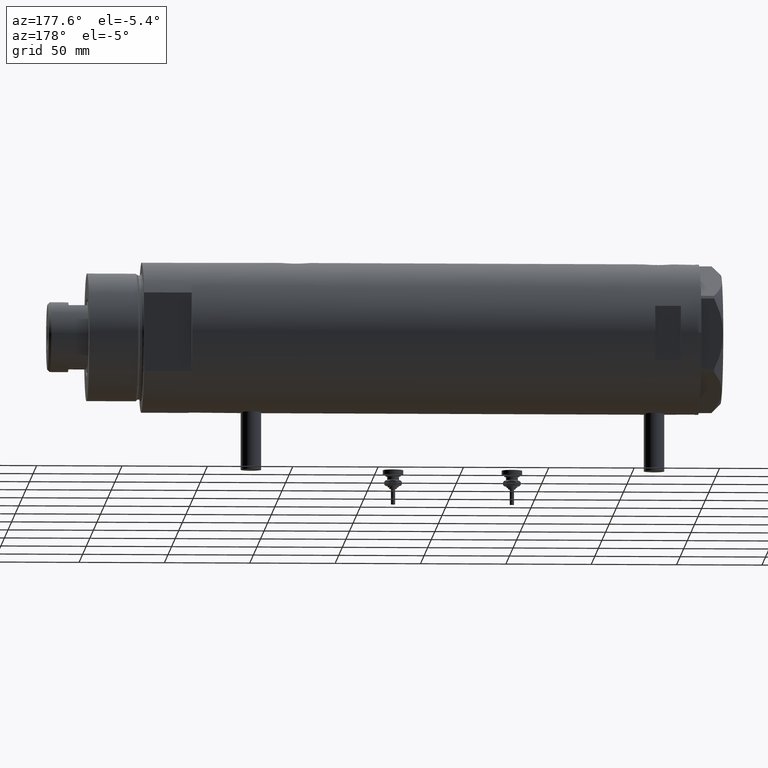
[diagram: clean part render]
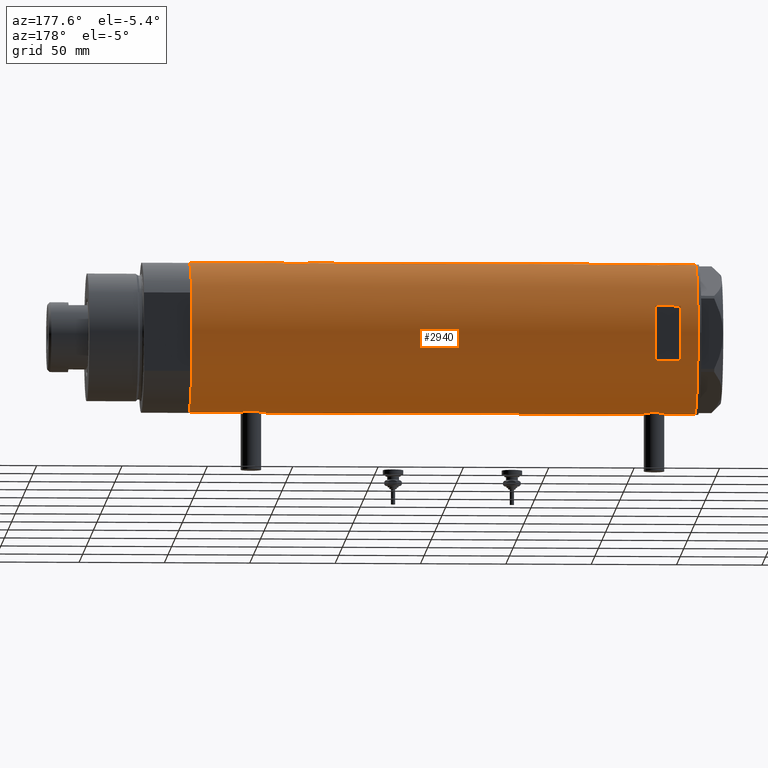
[diagram: same view with one face highlighted and labeled with its STEP entity id]
A machine part, auxiliary view. The second image highlights one B-rep face of the part: STEP entity #2940.
In plain terms, the highlighted cylindrical surface (partial cylindrical patch) has radius 44 mm, axis along (-1, -0, 0).
Its self-contained STEP definition (entity closure, byte-faithful):
#10 = CARTESIAN_POINT ( 'NONE',  ( 43.94229162222109863, 2.275476993733910991, -95.84314464222305219 ) ) ;
#13 = CARTESIAN_POINT ( 'NONE',  ( 43.17306590853067405, 8.492365194390501415, 131.1901253269345773 ) ) ;
#21 = VERTEX_POINT ( 'NONE', #4566 ) ;
#44 = CARTESIAN_POINT ( 'NONE',  ( 43.99635668041006653, 0.6544833911834624374, 135.8840070847753623 ) ) ;
#66 = CARTESIAN_POINT ( 'NONE',  ( -43.62981559643959883, 5.696090409300652802, -114.4805136541452271 ) ) ;
#75 = CARTESIAN_POINT ( 'NONE',  ( -43.83576802966639008, 3.813209221108460500, 119.2313450964529125 ) ) ;
#95 = FACE_BOUND ( 'NONE', #1025, .T. ) ;
#102 = CARTESIAN_POINT ( 'NONE',  ( -43.92459115390705904, 2.581892149020998506, 118.5045417292665491 ) ) ;
#109 = ORIENTED_EDGE ( 'NONE', *, *, #5431, .T. ) ;
#133 = CARTESIAN_POINT ( 'NONE',  ( -43.55973179376101001, 6.209370339246233605, 123.3793823294013379 ) ) ;
#174 = EDGE_CURVE ( 'NONE', #3316, #5863, #4239, .T. ) ;
#191 = CARTESIAN_POINT ( 'NONE',  ( 43.85884410404901956, 3.534688330930385369, -95.46019808750335756 ) ) ;
#196 = CARTESIAN_POINT ( 'NONE',  ( -43.67867890111968165, 5.309046579850784653, 120.8957722092397660 ) ) ;
#211 = DIRECTION ( 'NONE',  ( 0.000000000000000000, 0.000000000000000000, 1.000000000000000000 ) ) ;
#214 = EDGE_CURVE ( 'NONE', #4997, #4522, #5114, .T. ) ;
#219 = CARTESIAN_POINT ( 'NONE',  ( 43.13897484505559987, 8.663345277311670145, -91.10529600060513644 ) ) ;
#253 = DIRECTION ( 'NONE',  ( 0.000000000000000000, 0.000000000000000000, 1.000000000000000000 ) ) ;
#262 = CARTESIAN_POINT ( 'NONE',  ( 43.07598348983508174, 8.971306953823004804, 121.4703057681281138 ) ) ;
#272 = CARTESIAN_POINT ( 'NONE',  ( -44.00000000000000000, 5.388445916248353619E-15, -148.1999999999999886 ) ) ;
#273 = VECTOR ( 'NONE', #211, 1000.000000000000000 ) ;
#284 = CARTESIAN_POINT ( 'NONE',  ( 43.27871541412905287, 7.937063204555986573, -80.00825002753971660 ) ) ;
#323 = CARTESIAN_POINT ( 'NONE',  ( 42.92624534982631701, 9.661626915142806027, 123.2999199585529482 ) ) ;
#339 = CARTESIAN_POINT ( 'NONE',  ( 43.35257020184193522, 7.523219862841656003, -79.50397445915866967 ) ) ;
#343 = CARTESIAN_POINT ( 'NONE',  ( -44.00000000000000000, 4.742435893011557518E-16, -105.6499999999999915 ) ) ;
#352 = CARTESIAN_POINT ( 'NONE',  ( 42.90786968859020334, 9.742642423712167599, 123.6219770345287543 ) ) ;
#382 = CARTESIAN_POINT ( 'NONE',  ( -43.95446647384545003, 2.010857111636596084, 130.1212422636393455 ) ) ;
#437 = CARTESIAN_POINT ( 'NONE',  ( -43.57657963456318839, 6.089610171536609329, 125.6217853958080894 ) ) ;
#457 = VERTEX_POINT ( 'NONE', #3061 ) ;
#462 = EDGE_CURVE ( 'NONE', #2412, #4887, #4176, .T. ) ;
#465 = CARTESIAN_POINT ( 'NONE',  ( 43.77712723341632994, 4.432620652875505662, 134.8699500975996557 ) ) ;
#487 = CARTESIAN_POINT ( 'NONE',  ( -43.55386785759471024, 6.249847571481740971, -111.4894505238204374 ) ) ;
#491 = EDGE_CURVE ( 'NONE', #4489, #4522, #757, .T. ) ;
#506 = ORIENTED_EDGE ( 'NONE', *, *, #3540, .F. ) ;
#508 = VECTOR ( 'NONE', #2962, 1000.000000000000000 ) ;
#511 = VECTOR ( 'NONE', #4270, 1000.000000000000000 ) ;
#516 = CARTESIAN_POINT ( 'NONE',  ( -43.66555354895124452, 5.415612800338318600, -108.7734364282244712 ) ) ;
#546 = CARTESIAN_POINT ( 'NONE',  ( -43.74833112883977293, 4.708208586952001617, -107.7694961649112457 ) ) ;
#640 = CARTESIAN_POINT ( 'NONE',  ( 43.77939001959703802, 4.442287752090381403, -95.08306177559161654 ) ) ;
#645 = CARTESIAN_POINT ( 'NONE',  ( -43.71901936021024682, 4.969830049220625767, 120.3883236230112743 ) ) ;
#661 = CARTESIAN_POINT ( 'NONE',  ( 0.000000000000000000, 0.000000000000000000, 123.1999999999999744 ) ) ;
#668 = DIRECTION ( 'NONE',  ( -0.000000000000000000, -0.000000000000000000, -1.000000000000000000 ) ) ;
#685 = CARTESIAN_POINT ( 'NONE',  ( 43.94229162222109863, 2.275476993733910547, 116.1568553577769620 ) ) ;
#703 = CARTESIAN_POINT ( 'NONE',  ( 42.92624534982630280, 9.661626915142804251, -88.70008004144708025 ) ) ;
#711 = CARTESIAN_POINT ( 'NONE',  ( -44.00000000000000000, 5.388445781982983516E-15, 117.9500000000000028 ) ) ;
#757 = LINE ( 'NONE', #272, #508 ) ;
#771 = CARTESIAN_POINT ( 'NONE',  ( 43.97062489912107708, 1.639461988184795826, -76.22985373334013559 ) ) ;
#775 = CARTESIAN_POINT ( 'NONE',  ( -44.00000000000000711, 0.4135148353567996149, -105.6499999999999773 ) ) ;
#781 = CARTESIAN_POINT ( 'NONE',  ( -44.00000000000000000, 5.388445916248353619E-15, 148.1999999999999886 ) ) ;
#784 = CARTESIAN_POINT ( 'NONE',  ( 42.99303682946561622, 9.360292926890506848, 122.3657577979279836 ) ) ;
#798 = CARTESIAN_POINT ( 'NONE',  ( -44.00000000000000000, 3.205170455528113082E-15, 130.4500000000000171 ) ) ;
#800 = EDGE_CURVE ( 'NONE', #3464, #457, #1961, .T. ) ;
#826 = CARTESIAN_POINT ( 'NONE',  ( 43.17306590853065984, 8.492365194390513849, -80.80987467306545113 ) ) ;
#840 = CARTESIAN_POINT ( 'NONE',  ( 43.57805684119163914, 6.103282219787171670, 133.8481620164786534 ) ) ;
#899 = CARTESIAN_POINT ( 'NONE',  ( -43.99999999999997158, 0.4081702738789203533, -118.1499999999999631 ) ) ;
#901 = CARTESIAN_POINT ( 'NONE',  ( 43.35257020184193522, 7.523219862841646233, 132.4960255408413730 ) ) ;
#926 = CARTESIAN_POINT ( 'NONE',  ( -43.66575107734168171, 5.414026674167576658, -115.0293508803769811 ) ) ;
#930 = CARTESIAN_POINT ( 'NONE',  ( -43.97068415157984589, 1.617901284326944689, 130.2404512830004251 ) ) ;
#955 = CARTESIAN_POINT ( 'NONE',  ( 15.96871942267132027, 40.99999999999999289, 123.1999999999999886 ) ) ;
#986 = CARTESIAN_POINT ( 'NONE',  ( -44.00000000000000000, 5.388445781982983516E-15, -118.1500000000000057 ) ) ;
#1025 = EDGE_LOOP ( 'NONE', ( #5167, #1451, #506, #5436 ) ) ;
#1072 = ORIENTED_EDGE ( 'NONE', *, *, #5400, .T. ) ;
#1107 = CARTESIAN_POINT ( 'NONE',  ( -43.64133398152736021, 5.607447751852150830, 121.4321395498756573 ) ) ;
#1135 = CARTESIAN_POINT ( 'NONE',  ( 43.46520118248735542, 6.843279251446915623, -93.39898327212165441 ) ) ;
#1137 = DIRECTION ( 'NONE',  ( 0.000000000000000000, 0.000000000000000000, 1.000000000000000000 ) ) ;
#1147 = CARTESIAN_POINT ( 'NONE',  ( -43.74805001749254529, 4.711035428619386956, -116.0277606412579985 ) ) ;
#1188 = CARTESIAN_POINT ( 'NONE',  ( 0.000000000000000000, 0.000000000000000000, 138.1999999999999886 ) ) ;
#1191 = CARTESIAN_POINT ( 'NONE',  ( 42.84863276153905076, 9.999733523508359312, -86.75869904750777550 ) ) ;
#1195 = DIRECTION ( 'NONE',  ( 0.000000000000000000, 0.000000000000000000, 1.000000000000000000 ) ) ;
#1262 = CARTESIAN_POINT ( 'NONE',  ( -43.91413175532567692, 2.773555030353453965, -106.2841576163325925 ) ) ;
#1284 = CARTESIAN_POINT ( 'NONE',  ( 44.00000000000002132, 0.3269372501759363336, -76.10000000000002274 ) ) ;
#1294 = CARTESIAN_POINT ( 'NONE',  ( 44.00000000000001421, 0.6630566900259826646, 115.9000000000000483 ) ) ;
#1319 = CARTESIAN_POINT ( 'NONE',  ( -43.67863969133946966, 5.309394106110044476, 127.5037929650255109 ) ) ;
#1367 = CARTESIAN_POINT ( 'NONE',  ( -43.61859254253774054, 5.782454868881351295, -109.5021359910553542 ) ) ;
#1370 = CARTESIAN_POINT ( 'NONE',  ( 43.98503110884232115, 1.314607393679875669, -96.03470984345551642 ) ) ;
#1395 = CARTESIAN_POINT ( 'NONE',  ( -43.67863969133946966, 5.309394106110037370, -108.5962070349745403 ) ) ;
#1451 = ORIENTED_EDGE ( 'NONE', *, *, #3939, .F. ) ;
#1463 = CARTESIAN_POINT ( 'NONE',  ( -43.91315028150558675, 2.769134003554747370, 118.5931738062459573 ) ) ;
#1476 = CARTESIAN_POINT ( 'NONE',  ( 15.96871942267132027, 40.99999999999999289, -148.1999999999999886 ) ) ;
#1486 = CARTESIAN_POINT ( 'NONE',  ( -43.59995593514495482, 5.920088975424566691, -109.8858209130821848 ) ) ;
#1498 = CARTESIAN_POINT ( 'NONE',  ( 44.00000000000000000, -3.917205576288906830E-21, 135.9000000000000341 ) ) ;
#1529 = VECTOR ( 'NONE', #4628, 1000.000000000000000 ) ;
#1571 = AXIS2_PLACEMENT_3D ( 'NONE', #661, #1662, #4410 ) ;
#1598 = ORIENTED_EDGE ( 'NONE', *, *, #174, .F. ) ;
#1610 = CARTESIAN_POINT ( 'NONE',  ( 43.39051256276903246, 7.301963662770312169, -79.25975531787059936 ) ) ;
#1624 = CARTESIAN_POINT ( 'NONE',  ( 42.96547725528407824, 9.488625330801086832, 129.1245034721107743 ) ) ;
#1645 = ORIENTED_EDGE ( 'NONE', *, *, #3233, .F. ) ;
#1662 = DIRECTION ( 'NONE',  ( -0.000000000000000000, -0.000000000000000000, 1.000000000000000000 ) ) ;
#1686 = CARTESIAN_POINT ( 'NONE',  ( -44.00000000000000000, 5.388445781982983516E-15, -118.1500000000000057 ) ) ;
#1708 = CARTESIAN_POINT ( 'NONE',  ( 43.24261242176995523, 8.130827601038827623, -80.26944813145831858 ) ) ;
#1717 = CARTESIAN_POINT ( 'NONE',  ( 43.57657781376909156, 6.094873943596689436, 117.9652569888040858 ) ) ;
#1734 = CARTESIAN_POINT ( 'NONE',  ( 44.00000000000000000, -3.917104602093038540E-21, -76.10000000000000853 ) ) ;
#1738 = CARTESIAN_POINT ( 'NONE',  ( 43.71454618729809027, 5.012329428678959253, -77.44063025941690626 ) ) ;
#1748 = CARTESIAN_POINT ( 'NONE',  ( 43.17277162440354488, 8.493905080221260562, 120.6121296489150723 ) ) ;
#1756 = DIRECTION ( 'NONE',  ( 0.000000000000000000, 0.000000000000000000, 1.000000000000000000 ) ) ;
#1771 = CARTESIAN_POINT ( 'NONE',  ( -43.74833112883975872, 4.708208586952010499, 128.3305038350887060 ) ) ;
#1805 = CARTESIAN_POINT ( 'NONE',  ( 43.24261242176996234, 8.130827601038818742, 131.7305518685417383 ) ) ;
#1826 = CARTESIAN_POINT ( 'NONE',  ( -43.94507179847653333, 2.206027755801677870, -106.0486847771820322 ) ) ;
#1830 = CARTESIAN_POINT ( 'NONE',  ( -43.87596296923810968, 3.305851531861728976, -117.2080358587625994 ) ) ;
#1858 = CARTESIAN_POINT ( 'NONE',  ( 44.00000000000000000, -3.917205576288906830E-21, 135.9000000000000341 ) ) ;
#1889 = CARTESIAN_POINT ( 'NONE',  ( -44.00000000000001421, 0.4135148353567998369, 130.4500000000000171 ) ) ;
#1922 = CARTESIAN_POINT ( 'NONE',  ( 43.27822890220284791, 7.945655169171514487, -92.20725383289293120 ) ) ;
#1928 = CARTESIAN_POINT ( 'NONE',  ( -43.87596296923809547, 3.305851531861729420, 118.8919641412373522 ) ) ;
#1956 = CARTESIAN_POINT ( 'NONE',  ( 43.92466059386730137, 2.593004216484783964, -95.76356669671355348 ) ) ;
#1960 = CARTESIAN_POINT ( 'NONE',  ( -43.99413512814552973, 0.8228129877960675964, 117.9909168567418050 ) ) ;
#1961 = LINE ( 'NONE', #3859, #511 ) ;
#1988 = CARTESIAN_POINT ( 'NONE',  ( -43.62981559643957752, 5.696090409300651025, 121.6194863458547673 ) ) ;
#2015 = CARTESIAN_POINT ( 'NONE',  ( -43.59867737633044982, 5.931302618788632408, 122.1875050497011301 ) ) ;
#2019 = VECTOR ( 'NONE', #1756, 1000.000000000000000 ) ;
#2038 = DIRECTION ( 'NONE',  ( 1.000000000000000000, -8.881784197001252323E-16, 0.000000000000000000 ) ) ;
#2044 = CARTESIAN_POINT ( 'NONE',  ( 43.71659050864931828, 5.015880325000607876, -94.77566825963822339 ) ) ;
#2078 = CARTESIAN_POINT ( 'NONE',  ( 42.86370458161098185, 9.935807968041567406, 124.5909544957013253 ) ) ;
#2088 = AXIS2_PLACEMENT_3D ( 'NONE', #5549, #4170, #3788 ) ;
#2101 = CARTESIAN_POINT ( 'NONE',  ( 0.000000000000000000, 0.000000000000000000, 148.1999999999999886 ) ) ;
#2134 = CARTESIAN_POINT ( 'NONE',  ( 43.98169492814104586, 1.310824514239765426, -76.18080219619319848 ) ) ;
#2161 = CARTESIAN_POINT ( 'NONE',  ( 42.84850876528984287, 10.00026482975807873, -85.44941694529576637 ) ) ;
#2164 = CARTESIAN_POINT ( 'NONE',  ( -15.96871942267132027, 40.99999999999999289, 123.1999999999999886 ) ) ;
#2267 = CARTESIAN_POINT ( 'NONE',  ( 43.71454618729809738, 5.012329428678965471, 134.5593697405831222 ) ) ;
#2293 = CARTESIAN_POINT ( 'NONE',  ( -43.55963022497230952, 6.210088036293396563, 125.0164616301742484 ) ) ;
#2315 = FACE_OUTER_BOUND ( 'NONE', #5351, .T. ) ;
#2337 = CARTESIAN_POINT ( 'NONE',  ( -43.55382423478827292, 6.250151562062086441, -112.3058952948734088 ) ) ;
#2343 = CARTESIAN_POINT ( 'NONE',  ( 43.50382207688847558, 6.605942769308297713, 133.4360468883822932 ) ) ;
#2365 = CARTESIAN_POINT ( 'NONE',  ( -43.58221825186232223, 6.049526113783018744, -113.5226297081795650 ) ) ;
#2372 = CARTESIAN_POINT ( 'NONE',  ( -43.66575107734167460, 5.414026674167574882, 121.0706491196229848 ) ) ;
#2377 = VERTEX_POINT ( 'NONE', #3301 ) ;
#2396 = VERTEX_POINT ( 'NONE', #3760 ) ;
#2412 = VERTEX_POINT ( 'NONE', #955 ) ;
#2528 = CARTESIAN_POINT ( 'NONE',  ( 42.86396777580259965, 9.934664719553397916, 127.2157619902652357 ) ) ;
#2531 = VERTEX_POINT ( 'NONE', #1734 ) ;
#2551 = CARTESIAN_POINT ( 'NONE',  ( 0.000000000000000000, 0.000000000000000000, -148.1999999999999886 ) ) ;
#2586 = CARTESIAN_POINT ( 'NONE',  ( 43.92756755766650656, 2.604528169608118393, -76.42286588097658750 ) ) ;
#2599 = CARTESIAN_POINT ( 'NONE',  ( 43.71659050864932539, 5.015880325000607876, 117.2243317403618477 ) ) ;
#2676 = VECTOR ( 'NONE', #3469, 1000.000000000000000 ) ;
#2688 = ORIENTED_EDGE ( 'NONE', *, *, #3309, .T. ) ;
#2716 = CARTESIAN_POINT ( 'NONE',  ( -43.91413175532566981, 2.773555030353461515, 129.8158423836674729 ) ) ;
#2770 = CARTESIAN_POINT ( 'NONE',  ( -43.95549163632549750, 2.014511215452027937, -117.8305895570497768 ) ) ;
#2773 = CARTESIAN_POINT ( 'NONE',  ( 43.39051256276903956, 7.301963662770305064, 132.7402446821294575 ) ) ;
#2826 = EDGE_CURVE ( 'NONE', #5863, #2396, #5674, .T. ) ;
#2867 = CARTESIAN_POINT ( 'NONE',  ( -44.00000000000000711, 0.4081702738789175222, 117.9500000000000313 ) ) ;
#2891 = CARTESIAN_POINT ( 'NONE',  ( -43.57657963456318839, 6.089610171536606664, -110.4782146041918622 ) ) ;
#2940 = ADVANCED_FACE ( 'NONE', ( #95, #2315 ), #3692, .T. ) ;
#2962 = DIRECTION ( 'NONE',  ( 0.000000000000000000, 0.000000000000000000, 1.000000000000000000 ) ) ;
#3018 = CARTESIAN_POINT ( 'NONE',  ( 43.85884410404901246, 3.534688330930383593, 116.5398019124966424 ) ) ;
#3037 = CARTESIAN_POINT ( 'NONE',  ( 42.86396777580259254, 9.934664719553399692, -84.78423800973480695 ) ) ;
#3061 = CARTESIAN_POINT ( 'NONE',  ( 44.00000000000000000, -2.552687571866728611E-15, -96.10000000000000853 ) ) ;
#3142 = CARTESIAN_POINT ( 'NONE',  ( 43.27822890220284791, 7.945655169171514487, 119.7927461671070830 ) ) ;
#3158 = AXIS2_PLACEMENT_3D ( 'NONE', #2551, #1195, #3607 ) ;
#3165 = CARTESIAN_POINT ( 'NONE',  ( -43.80687348212602217, 4.128385987736833407, -116.6104874331096255 ) ) ;
#3170 = CARTESIAN_POINT ( 'NONE',  ( -43.66555354895123742, 5.415612800338316823, 127.3265635717755515 ) ) ;
#3195 = CARTESIAN_POINT ( 'NONE',  ( -43.59995593514495482, 5.920088975424567579, 126.2141790869178379 ) ) ;
#3222 = CARTESIAN_POINT ( 'NONE',  ( -43.99417607942194763, 0.8200150578638757404, 130.4093667251674162 ) ) ;
#3233 = EDGE_CURVE ( 'NONE', #2396, #4561, #5480, .T. ) ;
#3242 = CARTESIAN_POINT ( 'NONE',  ( -43.64122538274737195, 5.608286354294323317, -109.1338861303666192 ) ) ;
#3249 = CARTESIAN_POINT ( 'NONE',  ( -43.83576802966640429, 3.813209221108459168, -116.8686549035471103 ) ) ;
#3261 = ORIENTED_EDGE ( 'NONE', *, *, #4906, .F. ) ;
#3286 = ORIENTED_EDGE ( 'NONE', *, *, #2826, .F. ) ;
#3301 = CARTESIAN_POINT ( 'NONE',  ( 15.96871942267132027, 40.99999999999999289, 138.1999999999999886 ) ) ;
#3303 = CARTESIAN_POINT ( 'NONE',  ( 43.35294442506072699, 7.532526048221049209, -92.70935414491108872 ) ) ;
#3307 = CARTESIAN_POINT ( 'NONE',  ( -43.95549163632550460, 2.014511215452026160, 118.2694104429502460 ) ) ;
#3309 = EDGE_CURVE ( 'NONE', #3464, #3959, #4984, .T. ) ;
#3316 = VERTEX_POINT ( 'NONE', #5865 ) ;
#3319 = DIRECTION ( 'NONE',  ( -0.000000000000000000, -0.000000000000000000, -1.000000000000000000 ) ) ;
#3327 = CARTESIAN_POINT ( 'NONE',  ( -43.88968326835893663, 3.132363423941621150, -106.4762076764352088 ) ) ;
#3331 = CARTESIAN_POINT ( 'NONE',  ( 43.88297407487990398, 3.222431612395379119, -95.57228202029342867 ) ) ;
#3388 = CARTESIAN_POINT ( 'NONE',  ( 44.00000000000000000, 0.000000000000000000, -148.1999999999999886 ) ) ;
#3418 = CARTESIAN_POINT ( 'NONE',  ( 43.57657781376908446, 6.094873943596679666, -94.03474301119597101 ) ) ;
#3426 = VECTOR ( 'NONE', #253, 1000.000000000000000 ) ;
#3431 = AXIS2_PLACEMENT_3D ( 'NONE', #1188, #668, #2038 ) ;
#3464 = VERTEX_POINT ( 'NONE', #3388 ) ;
#3466 = CARTESIAN_POINT ( 'NONE',  ( 43.07641822757289418, 8.969229373860580168, 130.3339623579017257 ) ) ;
#3469 = DIRECTION ( 'NONE',  ( 0.000000000000000000, 0.000000000000000000, 1.000000000000000000 ) ) ;
#3481 = CARTESIAN_POINT ( 'NONE',  ( 43.04663170950394857, 9.110642017076081345, -90.23547502190392322 ) ) ;
#3510 = CARTESIAN_POINT ( 'NONE',  ( 43.57805684119164624, 6.103282219787162788, -78.15183798352141764 ) ) ;
#3524 = CARTESIAN_POINT ( 'NONE',  ( 43.46520118248736253, 6.843279251446918288, 118.6010167278784024 ) ) ;
#3540 = EDGE_CURVE ( 'NONE', #21, #2377, #5673, .T. ) ;
#3546 = CARTESIAN_POINT ( 'NONE',  ( 43.68141895191830315, 5.292250119194731539, -77.60895047714808470 ) ) ;
#3580 = CARTESIAN_POINT ( 'NONE',  ( 43.80640706382533978, 4.134078575915388853, -76.98867178437912173 ) ) ;
#3588 = CARTESIAN_POINT ( 'NONE',  ( 42.84863276153905787, 9.999733523508361088, 125.2413009524922245 ) ) ;
#3607 = DIRECTION ( 'NONE',  ( 1.000000000000000000, 0.000000000000000000, 0.000000000000000000 ) ) ;
#3642 = CARTESIAN_POINT ( 'NONE',  ( -43.61859207403892214, 5.782454990768616021, 126.5978640851534180 ) ) ;
#3667 = ORIENTED_EDGE ( 'NONE', *, *, #214, .F. ) ;
#3673 = CARTESIAN_POINT ( 'NONE',  ( 44.00000000000000000, -2.552687571866728611E-15, -96.10000000000000853 ) ) ;
#3676 = CARTESIAN_POINT ( 'NONE',  ( 43.92756755766648524, 2.604528169608123722, 135.5771341190234409 ) ) ;
#3692 = CYLINDRICAL_SURFACE ( 'NONE', #2088, 44.00000000000000000 ) ;
#3698 = CARTESIAN_POINT ( 'NONE',  ( 44.00000000000000000, 0.000000000000000000, -148.1999999999999886 ) ) ;
#3736 = CARTESIAN_POINT ( 'NONE',  ( -43.97754480947187261, 1.419697478855583839, 130.2900327605207451 ) ) ;
#3760 = CARTESIAN_POINT ( 'NONE',  ( 44.00000000000000000, 0.000000000000000000, 148.1999999999999886 ) ) ;
#3770 = CARTESIAN_POINT ( 'NONE',  ( -43.88883895882798925, 3.130924084324100409, 118.7868754425185216 ) ) ;
#3779 = CARTESIAN_POINT ( 'NONE',  ( -44.00000000000000000, 5.388445916248353619E-15, -148.1999999999999886 ) ) ;
#3788 = DIRECTION ( 'NONE',  ( 1.000000000000000000, 0.000000000000000000, 0.000000000000000000 ) ) ;
#3798 = CARTESIAN_POINT ( 'NONE',  ( -44.00000000000000000, 5.388445781982983516E-15, 117.9500000000000028 ) ) ;
#3820 = CARTESIAN_POINT ( 'NONE',  ( -43.64133398152736021, 5.607447751852152606, -114.6678604501243512 ) ) ;
#3859 = CARTESIAN_POINT ( 'NONE',  ( 44.00000000000000000, 0.000000000000000000, -148.1999999999999886 ) ) ;
#3882 = CARTESIAN_POINT ( 'NONE',  ( 43.61291203895921598, 5.829986172017927792, -94.23128710786834006 ) ) ;
#3886 = CARTESIAN_POINT ( 'NONE',  ( -43.74805001749256661, 4.711035428619386956, 120.0722393587420669 ) ) ;
#3896 = CARTESIAN_POINT ( 'NONE',  ( -44.00000000000000000, 5.388445916248353619E-15, -148.1999999999999886 ) ) ;
#3912 = CARTESIAN_POINT ( 'NONE',  ( 43.99635668041006653, 0.6544833911834552209, -76.11599291522472299 ) ) ;
#3924 = CARTESIAN_POINT ( 'NONE',  ( 43.88297407487989688, 3.222431612395376455, 116.4277179797065997 ) ) ;
#3939 = EDGE_CURVE ( 'NONE', #2377, #2412, #5630, .T. ) ;
#3959 = VERTEX_POINT ( 'NONE', #3896 ) ;
#3974 = CARTESIAN_POINT ( 'NONE',  ( 44.00000000000000000, -3.917104602093038540E-21, -76.10000000000000853 ) ) ;
#3986 = CARTESIAN_POINT ( 'NONE',  ( 43.61291203895921598, 5.829986172017925128, 117.7687128921317452 ) ) ;
#3988 = LINE ( 'NONE', #4369, #2676 ) ;
#4004 = CARTESIAN_POINT ( 'NONE',  ( 43.07598348983507464, 8.971306953823010133, -90.52969423187184361 ) ) ;
#4027 = CARTESIAN_POINT ( 'NONE',  ( -15.96871942267132027, 40.99999999999999289, -148.1999999999999886 ) ) ;
#4040 = EDGE_CURVE ( 'NONE', #2531, #3316, #3988, .T. ) ;
#4071 = CARTESIAN_POINT ( 'NONE',  ( -43.83593455218809964, 3.811409182021288533, 129.1701492770350228 ) ) ;
#4097 = CARTESIAN_POINT ( 'NONE',  ( 44.00000000000001421, 0.3269372501759423844, 135.9000000000000625 ) ) ;
#4125 = CARTESIAN_POINT ( 'NONE',  ( -43.55386785759471735, 6.249847571481741859, 124.6105494761795569 ) ) ;
#4152 = CARTESIAN_POINT ( 'NONE',  ( 43.97062489912107708, 1.639461988184804486, 135.7701462666599070 ) ) ;
#4160 = CARTESIAN_POINT ( 'NONE',  ( -43.71901936021023971, 4.969830049220626655, -115.7116763769886916 ) ) ;
#4170 = DIRECTION ( 'NONE',  ( 0.000000000000000000, 0.000000000000000000, 1.000000000000000000 ) ) ;
#4172 = CARTESIAN_POINT ( 'NONE',  ( -43.55973179376100290, 6.209370339246232717, -112.7206176705986849 ) ) ;
#4176 = CIRCLE ( 'NONE', #1571, 44.00000000000000000 ) ;
#4179 = CARTESIAN_POINT ( 'NONE',  ( 43.68141895191831736, 5.292250119194742197, 134.3910495228520006 ) ) ;
#4199 = CARTESIAN_POINT ( 'NONE',  ( -43.80646232387288563, 4.132500855894024383, -107.1935441459664275 ) ) ;
#4207 = CARTESIAN_POINT ( 'NONE',  ( -43.80687348212601506, 4.128385987736831630, 119.4895125668903830 ) ) ;
#4223 = ORIENTED_EDGE ( 'NONE', *, *, #4968, .F. ) ;
#4239 = B_SPLINE_CURVE_WITH_KNOTS ( 'NONE', 3,
 ( #4436, #1294, #4496, #685, #5910, #3924, #3018, #5412, #2599, #3986, #1717, #5845, #3524, #4945, #3142, #1748, #5379, #262, #4919, #784, #4467, #323, #352, #2078, #3588, #5438, #2528, #5774, #1624, #5315, #3466, #4851, #13, #1805, #5063, #901, #2773, #2343, #840, #4179, #2267, #465, #4559, #5999, #3676, #4152, #4618, #44, #4097, #1858 ),
 .UNSPECIFIED., .F., .F.,
 ( 4, 2, 2, 2, 2, 2, 2, 2, 2, 2, 2, 2, 2, 2, 2, 2, 2, 2, 2, 2, 2, 2, 2, 2, 4 ),
 ( 1.676565531868734773E-18, 0.001960456513248841175, 0.002940684769873264798, 0.003920913026497689288, 0.005881369539746519187, 0.006861597796370934137, 0.007841826052995349086, 0.009802282566244210210, 0.01078251082286863817, 0.01176273907949306613, 0.01274296733611749582, 0.01372319559274192378, 0.01568365210599073981, 0.01764410861923955062, 0.01960456513248837185, 0.02058479338911281889, 0.02156502164573726593, 0.02254524990236171644, 0.02352547815898616002, 0.02548593467223511655, 0.02646616292885961563, 0.02744639118548411472, 0.02940684769873311635, 0.03038707595535761891, 0.03136730421198213187 ),
 .UNSPECIFIED. ) ;
#4260 = CARTESIAN_POINT ( 'NONE',  ( -43.59867737633045692, 5.931302618788633296, -113.9124949502988926 ) ) ;
#4270 = DIRECTION ( 'NONE',  ( 0.000000000000000000, 0.000000000000000000, 1.000000000000000000 ) ) ;
#4307 = CARTESIAN_POINT ( 'NONE',  ( -44.00000000000000000, 4.742435893011557518E-16, -105.6499999999999915 ) ) ;
#4369 = CARTESIAN_POINT ( 'NONE',  ( 44.00000000000000000, 0.000000000000000000, -148.1999999999999886 ) ) ;
#4390 = CARTESIAN_POINT ( 'NONE',  ( 42.86370458161097474, 9.935807968041563853, -87.40904550429864628 ) ) ;
#4410 = DIRECTION ( 'NONE',  ( -1.000000000000000000, -8.881784197001252323E-16, 0.000000000000000000 ) ) ;
#4422 = CARTESIAN_POINT ( 'NONE',  ( 43.13962074468734897, 8.660138848900672315, -81.08910258836064600 ) ) ;
#4436 = CARTESIAN_POINT ( 'NONE',  ( 44.00000000000000000, -1.726036355082439716E-15, 115.9000000000000199 ) ) ;
#4467 = CARTESIAN_POINT ( 'NONE',  ( 42.96879251999278893, 9.470609476412109373, 122.6727710005894352 ) ) ;
#4488 = CARTESIAN_POINT ( 'NONE',  ( 42.96879251999280314, 9.470609476412112926, -89.32722899941057904 ) ) ;
#4489 = VERTEX_POINT ( 'NONE', #4307 ) ;
#4496 = CARTESIAN_POINT ( 'NONE',  ( 43.98503110884230694, 1.314607393679875225, 115.9652901565444694 ) ) ;
#4522 = VERTEX_POINT ( 'NONE', #711 ) ;
#4530 = CARTESIAN_POINT ( 'NONE',  ( -43.88968326835894374, 3.132363423941633140, 129.6237923235648282 ) ) ;
#4559 = CARTESIAN_POINT ( 'NONE',  ( 43.80640706382533267, 4.134078575915394183, 135.0113282156208641 ) ) ;
#4561 = VERTEX_POINT ( 'NONE', #781 ) ;
#4566 = CARTESIAN_POINT ( 'NONE',  ( -15.96871942267132027, 40.99999999999999289, 138.1999999999999886 ) ) ;
#4580 = CARTESIAN_POINT ( 'NONE',  ( -43.99417607942194763, 0.8200150578638748522, -105.6906332748326207 ) ) ;
#4587 = CARTESIAN_POINT ( 'NONE',  ( -43.80646232387288563, 4.132500855894035929, 128.9064558540335668 ) ) ;
#4618 = CARTESIAN_POINT ( 'NONE',  ( 43.98169492814102455, 1.310824514239774530, 135.8191978038068441 ) ) ;
#4628 = DIRECTION ( 'NONE',  ( 0.000000000000000000, 0.000000000000000000, 1.000000000000000000 ) ) ;
#4640 = CARTESIAN_POINT ( 'NONE',  ( -43.58362292239462477, 6.039157555656595733, -110.2773642155195688 ) ) ;
#4648 = CARTESIAN_POINT ( 'NONE',  ( -44.00000000000000000, 3.205170455528113082E-15, 130.4500000000000171 ) ) ;
#4670 = CARTESIAN_POINT ( 'NONE',  ( -43.92459115390705193, 2.581892149020998950, -117.5954582707334595 ) ) ;
#4679 = ORIENTED_EDGE ( 'NONE', *, *, #4040, .F. ) ;
#4684 = LINE ( 'NONE', #3779, #1529 ) ;
#4693 = VERTEX_POINT ( 'NONE', #1686 ) ;
#4698 = AXIS2_PLACEMENT_3D ( 'NONE', #2101, #1137, #5802 ) ;
#4727 = CARTESIAN_POINT ( 'NONE',  ( -43.55963022497231663, 6.210088036293396563, -111.0835383698257601 ) ) ;
#4785 = CARTESIAN_POINT ( 'NONE',  ( -43.55382423478828713, 6.250151562062088217, 123.7941047051266281 ) ) ;
#4834 = CARTESIAN_POINT ( 'NONE',  ( -43.67867890111967455, 5.309046579850785541, -115.2042277907602141 ) ) ;
#4851 = CARTESIAN_POINT ( 'NONE',  ( 43.13962074468733476, 8.660138848900681197, 130.9108974116393540 ) ) ;
#4863 = LINE ( 'NONE', #4027, #273 ) ;
#4871 = CARTESIAN_POINT ( 'NONE',  ( 43.77712723341632284, 4.432620652875495892, -77.13004990240027325 ) ) ;
#4887 = VERTEX_POINT ( 'NONE', #2164 ) ;
#4895 = VECTOR ( 'NONE', #3319, 1000.000000000000000 ) ;
#4906 = EDGE_CURVE ( 'NONE', #4489, #4693, #5712, .T. ) ;
#4909 = CARTESIAN_POINT ( 'NONE',  ( 43.88561577393361546, 3.228056721358708803, -76.61278334272179791 ) ) ;
#4919 = CARTESIAN_POINT ( 'NONE',  ( 43.04663170950396278, 9.110642017076083121, 121.7645249780961052 ) ) ;
#4937 = CARTESIAN_POINT ( 'NONE',  ( 42.96547725528408535, 9.488625330801085056, -82.87549652788929677 ) ) ;
#4942 = ORIENTED_EDGE ( 'NONE', *, *, #800, .F. ) ;
#4945 = CARTESIAN_POINT ( 'NONE',  ( 43.35294442506074120, 7.532526048221051873, 119.2906458550888829 ) ) ;
#4968 = EDGE_CURVE ( 'NONE', #457, #2531, #5872, .T. ) ;
#4984 = CIRCLE ( 'NONE', #3158, 44.00000000000000000 ) ;
#4997 = VERTEX_POINT ( 'NONE', #798 ) ;
#5002 = CARTESIAN_POINT ( 'NONE',  ( -43.91315028150560096, 2.769134003554746482, -117.5068261937540370 ) ) ;
#5008 = CARTESIAN_POINT ( 'NONE',  ( -43.64122538274736485, 5.608286354294323317, 126.9661138696334177 ) ) ;
#5018 = CARTESIAN_POINT ( 'NONE',  ( -44.00000000000000000, 5.388445916248353619E-15, -148.1999999999999886 ) ) ;
#5033 = CARTESIAN_POINT ( 'NONE',  ( -43.58362292239463187, 6.039157555656599285, 125.8226357844804681 ) ) ;
#5063 = CARTESIAN_POINT ( 'NONE',  ( 43.27871541412905287, 7.937063204555979468, 131.9917499724603545 ) ) ;
#5109 = EDGE_CURVE ( 'NONE', #4887, #21, #4863, .T. ) ;
#5114 = B_SPLINE_CURVE_WITH_KNOTS ( 'NONE', 3,
 ( #4648, #1889, #3222, #3736, #930, #382, #5500, #2716, #4530, #4071, #4587, #1771, #5470, #1319, #3170, #5008, #3642, #3195, #5033, #437, #2293, #4125, #4785, #133, #5127, #2015, #1988, #1107, #2372, #196, #645, #3886, #4207, #75, #1928, #3770, #1463, #102, #3307, #5159, #1960, #2867, #3798 ),
 .UNSPECIFIED., .F., .F.,
 ( 4, 2, 2, 2, 2, 2, 2, 2, 1, 2, 2, 2, 2, 2, 2, 2, 2, 2, 2, 2, 2, 4 ),
 ( 3.114226524098576417E-18, 0.001222818171749707637, 0.001834227257624559829, 0.002445636343499412238, 0.003668454515249116622, 0.004891272686998821874, 0.006114090858748525391, 0.006725499944623378884, 0.007336909030498230642, 0.007948318116373082401, 0.008559727202247935027, 0.009782545373997636809, 0.01100536354574729869, 0.01222818171749695884, 0.01283959080337180973, 0.01345099988924666062, 0.01467381806099635894, 0.01589663623274606072, 0.01650804531862090987, 0.01711945440449575903, 0.01834227257624546428, 0.01956509074799516260 ),
 .UNSPECIFIED. ) ;
#5122 = CARTESIAN_POINT ( 'NONE',  ( -43.99413512814552263, 0.8228129877960659311, -118.1090831432582604 ) ) ;
#5127 = CARTESIAN_POINT ( 'NONE',  ( -43.58221825186232223, 6.049526113783017855, 122.5773702918204293 ) ) ;
#5149 = CARTESIAN_POINT ( 'NONE',  ( -43.71938389712227746, 4.966728892888062852, -108.0838554765912960 ) ) ;
#5159 = CARTESIAN_POINT ( 'NONE',  ( -43.97181775256599678, 1.624866278047412349, 118.1510708161490442 ) ) ;
#5167 = ORIENTED_EDGE ( 'NONE', *, *, #462, .F. ) ;
#5221 = ORIENTED_EDGE ( 'NONE', *, *, #491, .T. ) ;
#5272 = CARTESIAN_POINT ( 'NONE',  ( 43.50265731352003939, 6.601850423195591233, -93.61819167298956756 ) ) ;
#5315 = CARTESIAN_POINT ( 'NONE',  ( 43.04652664061920575, 9.111152824375430725, 130.0345800921458874 ) ) ;
#5331 = CARTESIAN_POINT ( 'NONE',  ( 42.90786968859020334, 9.742642423712169375, -88.37802296547127412 ) ) ;
#5351 = EDGE_LOOP ( 'NONE', ( #2688, #109, #3261, #5221, #3667, #1072, #1645, #3286, #1598, #4679, #4223, #4942 ) ) ;
#5366 = CARTESIAN_POINT ( 'NONE',  ( 42.92259096922160921, 9.678247830257127760, -83.49994006971209615 ) ) ;
#5379 = CARTESIAN_POINT ( 'NONE',  ( 43.13897484505559277, 8.663345277311664816, 120.8947039993948920 ) ) ;
#5399 = CARTESIAN_POINT ( 'NONE',  ( 43.04652664061920575, 9.111152824375425396, -81.96541990785412679 ) ) ;
#5400 = EDGE_CURVE ( 'NONE', #4997, #4561, #5923, .T. ) ;
#5404 = CARTESIAN_POINT ( 'NONE',  ( -43.97068415157983878, 1.617901284326946909, -105.8595487169995266 ) ) ;
#5412 = CARTESIAN_POINT ( 'NONE',  ( 43.77939001959704513, 4.442287752090381403, 116.9169382244084119 ) ) ;
#5428 = CARTESIAN_POINT ( 'NONE',  ( 43.50382207688845426, 6.605942769308308371, -78.56395311161780626 ) ) ;
#5431 = EDGE_CURVE ( 'NONE', #3959, #4693, #4684, .T. ) ;
#5436 = ORIENTED_EDGE ( 'NONE', *, *, #5109, .F. ) ;
#5438 = CARTESIAN_POINT ( 'NONE',  ( 42.84850876528984287, 10.00026482975808406, 126.5505830547042621 ) ) ;
#5470 = CARTESIAN_POINT ( 'NONE',  ( -43.71938389712227035, 4.966728892888069069, 128.0161445234087125 ) ) ;
#5480 = CIRCLE ( 'NONE', #4698, 44.00000000000000000 ) ;
#5500 = CARTESIAN_POINT ( 'NONE',  ( -43.94507179847653333, 2.206027755801685863, 130.0513152228180047 ) ) ;
#5523 = CARTESIAN_POINT ( 'NONE',  ( 44.00000000000001421, 0.6630566900259825536, -96.09999999999998010 ) ) ;
#5549 = CARTESIAN_POINT ( 'NONE',  ( 0.000000000000000000, 0.000000000000000000, -148.1999999999999886 ) ) ;
#5556 = CARTESIAN_POINT ( 'NONE',  ( -43.97181775256600389, 1.624866278047415680, -117.9489291838509502 ) ) ;
#5586 = CARTESIAN_POINT ( 'NONE',  ( -43.88883895882799635, 3.130924084324101297, -117.3131245574814727 ) ) ;
#5630 = LINE ( 'NONE', #1476, #4895 ) ;
#5642 = CARTESIAN_POINT ( 'NONE',  ( -43.83593455218809254, 3.811409182021277431, -106.9298507229649857 ) ) ;
#5673 = CIRCLE ( 'NONE', #3431, 44.00000000000000000 ) ;
#5674 = LINE ( 'NONE', #3698, #3426 ) ;
#5712 = B_SPLINE_CURVE_WITH_KNOTS ( 'NONE', 3,
 ( #343, #775, #4580, #5989, #5404, #5901, #1826, #1262, #3327, #5642, #4199, #546, #5149, #1395, #516, #3242, #1367, #1486, #4640, #2891, #4727, #487, #2337, #4172, #2365, #4260, #66, #3820, #926, #4834, #4160, #1147, #3165, #3249, #1830, #5586, #5002, #4670, #2770, #5556, #5122, #899, #986 ),
 .UNSPECIFIED., .F., .F.,
 ( 4, 2, 2, 2, 2, 2, 2, 2, 1, 2, 2, 2, 2, 2, 2, 2, 2, 2, 2, 2, 2, 4 ),
 ( 4.607873388256435088E-19, 0.001222818171749670340, 0.001834227257624505619, 0.002445636343499341114, 0.003668454515249027284, 0.004891272686998713454, 0.006114090858748398756, 0.006725499944623259188, 0.007336909030498119620, 0.007948318116372978318, 0.008559727202247837882, 0.009782545373997518848, 0.01100536354574719981, 0.01222818171749687904, 0.01283959080337173861, 0.01345099988924659644, 0.01467381806099631383, 0.01589663623274603296, 0.01650804531862088906, 0.01711945440449574862, 0.01834227257624546428, 0.01956509074799517994 ),
 .UNSPECIFIED. ) ;
#5774 = CARTESIAN_POINT ( 'NONE',  ( 42.92259096922159500, 9.678247830257124207, 128.5000599302879323 ) ) ;
#5797 = CARTESIAN_POINT ( 'NONE',  ( 43.17277162440355198, 8.493905080221260562, -91.38787035108497037 ) ) ;
#5802 = DIRECTION ( 'NONE',  ( 1.000000000000000000, 0.000000000000000000, 0.000000000000000000 ) ) ;
#5845 = CARTESIAN_POINT ( 'NONE',  ( 43.50265731352003939, 6.601850423195601003, 118.3818083270105177 ) ) ;
#5861 = CARTESIAN_POINT ( 'NONE',  ( 42.99303682946561622, 9.360292926890510401, -89.63424220207205906 ) ) ;
#5863 = VERTEX_POINT ( 'NONE', #1498 ) ;
#5865 = CARTESIAN_POINT ( 'NONE',  ( 44.00000000000000000, -1.726036355082439716E-15, 115.9000000000000199 ) ) ;
#5872 = B_SPLINE_CURVE_WITH_KNOTS ( 'NONE', 3,
 ( #3673, #5523, #1370, #10, #1956, #3331, #191, #640, #2044, #3882, #3418, #5272, #1135, #3303, #1922, #5797, #219, #4004, #3481, #5861, #4488, #703, #5331, #4390, #1191, #2161, #3037, #5366, #4937, #5399, #5898, #4422, #826, #1708, #284, #339, #1610, #5428, #3510, #3546, #1738, #4871, #3580, #4909, #2586, #771, #2134, #3912, #1284, #3974 ),
 .UNSPECIFIED., .F., .F.,
 ( 4, 2, 2, 2, 2, 2, 2, 2, 2, 2, 2, 2, 2, 2, 2, 2, 2, 2, 2, 2, 2, 2, 2, 2, 4 ),
 ( 2.479523669370822448E-18, 0.001960456513248891482, 0.002940684769873340258, 0.003920913026497789035, 0.005881369539746669241, 0.006861597796371108476, 0.007841826052995546845, 0.009802282566244456541, 0.01078251082286890879, 0.01176273907949335930, 0.01274296733611781154, 0.01372319559274226206, 0.01568365210599112838, 0.01764410861923999124, 0.01960456513248885757, 0.02058479338911329073, 0.02156502164573771696, 0.02254524990236214665, 0.02352547815898657982, 0.02548593467223546696, 0.02646616292885991054, 0.02744639118548435758, 0.02940684769873324472, 0.03038707595535769176, 0.03136730421198213881 ),
 .UNSPECIFIED. ) ;
#5898 = CARTESIAN_POINT ( 'NONE',  ( 43.07641822757289418, 8.969229373860567733, -81.66603764209828853 ) ) ;
#5901 = CARTESIAN_POINT ( 'NONE',  ( -43.95446647384543581, 2.010857111636599637, -105.9787577363606346 ) ) ;
#5910 = CARTESIAN_POINT ( 'NONE',  ( 43.92466059386730848, 2.593004216484782631, 116.2364333032864891 ) ) ;
#5923 = LINE ( 'NONE', #5018, #2019 ) ;
#5989 = CARTESIAN_POINT ( 'NONE',  ( -43.97754480947185129, 1.419697478855583617, -105.8099672394792066 ) ) ;
#5999 = CARTESIAN_POINT ( 'NONE',  ( 43.88561577393363677, 3.228056721358719017, 135.3872166572783158 ) ) ;